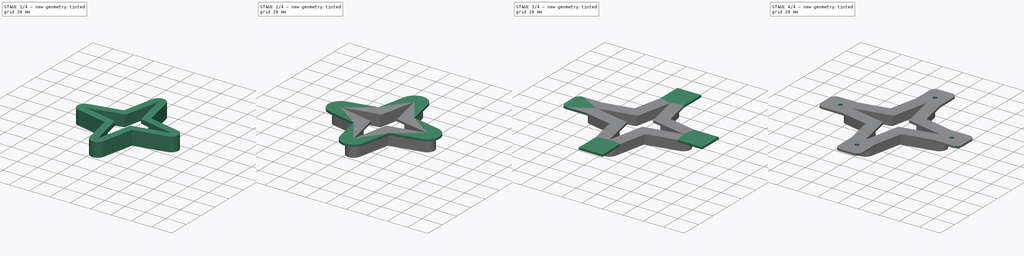
[diagram: build sequence overview — one tinted view per stage of 4, left to right]
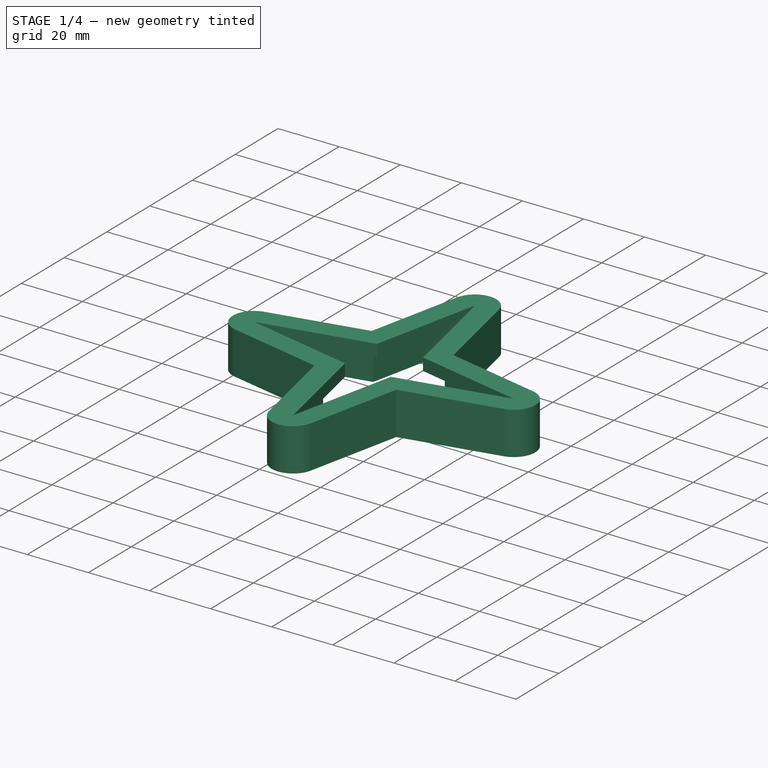
[diagram: stage 1 of 4 — iso view after this stage's code; geometry added in this stage tinted green]
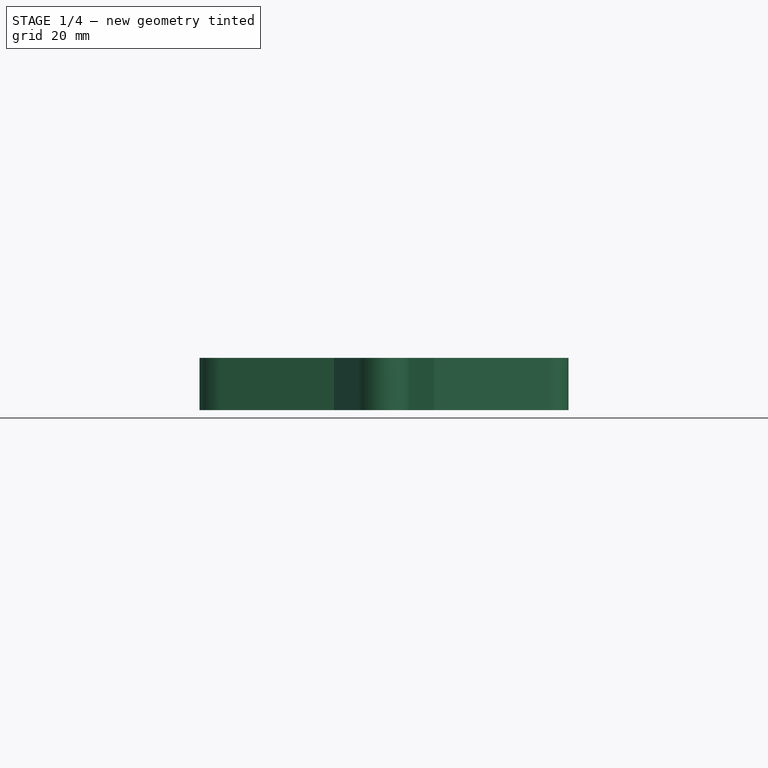
[diagram: stage 1 of 4 — front view after this stage's code; geometry added in this stage tinted green]
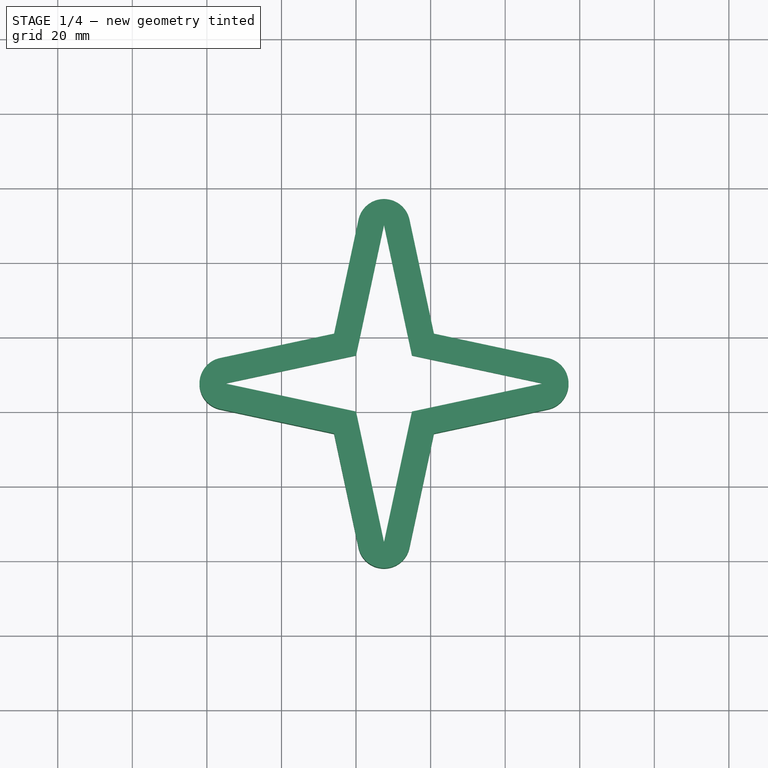
[diagram: stage 1 of 4 — top view after this stage's code; geometry added in this stage tinted green]
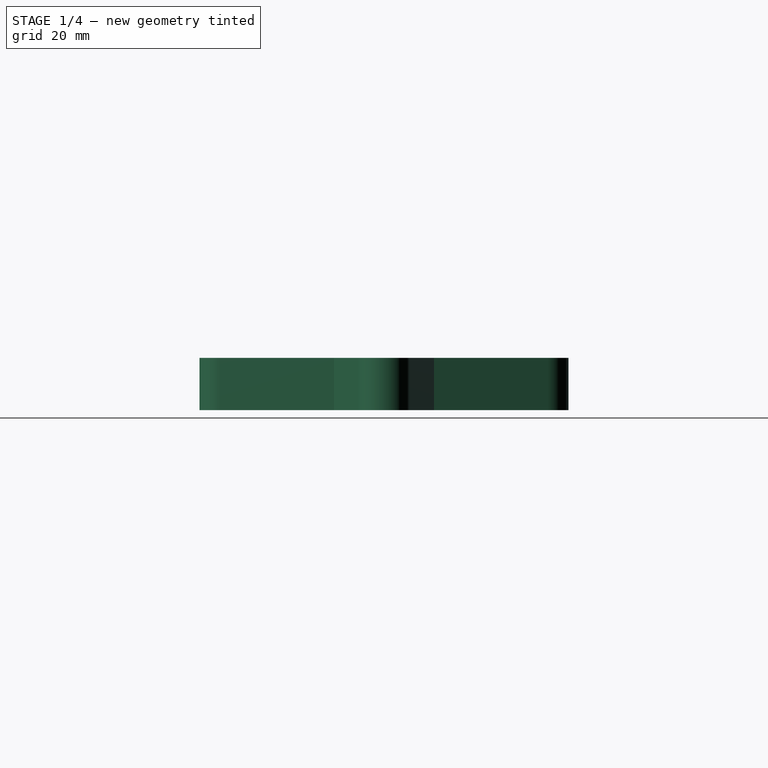
[diagram: stage 1 of 4 — right view after this stage's code; geometry added in this stage tinted green]
FCSTD DOCUMENT  (FreeCAD 1.0R39285 (Git))
Label: star
License: All rights reserved
LicenseURL: https://en.wikipedia.org/wiki/All_rights_reserved
objects: Sketcher::SketchObject×6, PartDesign::Pad×5, PartDesign::Pocket×4, PartDesign::Fillet×3, PartDesign::Body×1
note: 49 computed .brp shape members not serialized (recipe doc carries the construction recipe); baked Part::Feature solids carry a one-line shape summary decoded from their .brp

FEATURE [Sketcher::SketchObject] Sketch
  ArcFitTolerance = 1e-06
  AttachmentSupport = -> [XY_Plane]
  FullyConstrained = false
  MakeInternals = false
  MapMode = 5
  sketch-geometry (20):
    g0: LineSegment StartX=15 StartY=0 StartZ=0 EndX=50 EndY=7.5 EndZ=0
    g1: LineSegment StartX=50 StartY=7.5 StartZ=0 EndX=15 EndY=15 EndZ=0
    g2: LineSegment StartX=0 StartY=0 StartZ=0 EndX=7.5 EndY=-35 EndZ=0
    g3: LineSegment StartX=7.5 StartY=-35 StartZ=0 EndX=15 EndY=0 EndZ=0
    g4: LineSegment StartX=0 StartY=0 StartZ=0 EndX=-35 EndY=7.5 EndZ=0
    g5: LineSegment StartX=-35 StartY=7.5 StartZ=0 EndX=0 EndY=15 EndZ=0
    g6: LineSegment StartX=7.5 StartY=50 StartZ=0 EndX=15 EndY=15 EndZ=0
    g7: LineSegment StartX=0 StartY=15 StartZ=0 EndX=7.5 EndY=50 EndZ=0
    g8: LineSegment StartX=-4.21112 StartY=19.2111 StartZ=0 EndX=2.61099 EndY=51.0476 EndZ=0
    g9: ArcOfCircle CenterX=7.5 CenterY=50 CenterZ=0 NormalX=0 NormalY=0 NormalZ=1 AngleXU=-1.3597 Radius=5 StartAngle=1.5708 EndAngle=4.2902
    g10: LineSegment StartX=12.389 StartY=51.0476 StartZ=0 EndX=19.2111 EndY=19.2111 EndZ=0
    g11: LineSegment StartX=51.0476 StartY=12.389 StartZ=0 EndX=19.2111 EndY=19.2111 EndZ=0
    g12: ArcOfCircle CenterX=50 CenterY=7.5 CenterZ=0 NormalX=0 NormalY=0 NormalZ=1 AngleXU=-2.9305 Radius=5 StartAngle=1.5708 EndAngle=4.2902
    g13: LineSegment StartX=19.2111 StartY=-4.21112 StartZ=0 EndX=51.0476 EndY=2.61099 EndZ=0
    g14: LineSegment StartX=12.389 StartY=-36.0476 StartZ=0 EndX=19.2111 EndY=-4.21112 EndZ=0
    g15: ArcOfCircle CenterX=7.5 CenterY=-35 CenterZ=0 NormalX=0 NormalY=0 NormalZ=1 AngleXU=1.78189 Radius=5 StartAngle=1.5708 EndAngle=4.2902
    g16: LineSegment StartX=-4.21112 StartY=-4.21112 StartZ=0 EndX=2.61099 EndY=-36.0476 EndZ=0
    g17: LineSegment StartX=-4.21112 StartY=-4.21112 StartZ=0 EndX=-36.0476 EndY=2.61099 EndZ=0
    g18: ArcOfCircle CenterX=-35 CenterY=7.5 CenterZ=0 NormalX=0 NormalY=0 NormalZ=1 AngleXU=0.211093 Radius=5 StartAngle=1.5708 EndAngle=4.2902
    g19: LineSegment StartX=-36.0476 StartY=12.389 StartZ=0 EndX=-4.21112 EndY=19.2111 EndZ=0
  constraints (13):
    c: Distance(g0,g-1) = 15
    c: Tangent(g8,g9) = 1.5708
    c: Coincident(g8,g19)
    c: Tangent(g9,g10) = 1.5708
    c: Coincident(g10,g11)
    c: Tangent(g11,g12) = -1.5708
    c: Tangent(g12,g13) = -1.5708
    c: Coincident(g13,g14)
    c: Tangent(g14,g15) = -1.5708
    c: Tangent(g15,g16) = -1.5708
    c: Coincident(g16,g17)
    c: Tangent(g17,g18) = 1.5708
    c: Tangent(g18,g19) = 1.5708
FEATURE [PartDesign::Pad] Pad
  Direction = (0,0,1)
  Length = 2
  Length2 = 10
  Profile = -> Sketch
  ReferenceAxis = -> Sketch [N_Axis]
  Refine = true
  Suppressed = false
  Type = 0
FEATURE [Sketcher::SketchObject] Sketch001
  ArcFitTolerance = 1e-06
  AttachmentSupport = -> [Pad]
  ExternalGeometry = -> [Pad]
  FullyConstrained = true
  MakeInternals = false
  MapMode = 5
  Placement = pos=(0,0,2) rot=(0,0,1;0rad)
FEATURE [Sketcher::SketchObject] Sketch002
  ArcFitTolerance = 1e-06
  AttachmentSupport = -> [Pad]
  ExternalGeometry = -> [Pad]
  FullyConstrained = false
  MakeInternals = false
  MapMode = 5
  Placement = pos=(0,0,2) rot=(0,0,1;0rad)
  sketch-geometry (20):
    g0: LineSegment StartX=7.5 StartY=50 StartZ=0 EndX=15 EndY=15 EndZ=0
    g1: LineSegment StartX=50 StartY=7.5 StartZ=0 EndX=15 EndY=15 EndZ=0
    g2: LineSegment StartX=15 StartY=0 StartZ=0 EndX=50 EndY=7.5 EndZ=0
    g3: LineSegment StartX=15 StartY=0 StartZ=0 EndX=7.5 EndY=-35 EndZ=0
    g4: LineSegment StartX=7.5 StartY=-35 StartZ=0 EndX=0 EndY=0 EndZ=0
    g5: LineSegment StartX=0 StartY=0 StartZ=0 EndX=-35 EndY=7.5 EndZ=0
    g6: LineSegment StartX=0 StartY=15 StartZ=0 EndX=-35 EndY=7.5 EndZ=0
    g7: LineSegment StartX=0 StartY=15 StartZ=0 EndX=7.5 EndY=50 EndZ=0
    g8: LineSegment StartX=-5.89557 StartY=20.8956 StartZ=0 EndX=0.655383 EndY=51.4667 EndZ=0
    g9: ArcOfCircle CenterX=7.5 CenterY=50 CenterZ=0 NormalX=0 NormalY=0 NormalZ=1 AngleXU=-1.3597 Radius=7 StartAngle=1.5708 EndAngle=4.2902
    g10: LineSegment StartX=14.3446 StartY=51.4667 StartZ=0 EndX=20.8956 EndY=20.8956 EndZ=0
    g11: LineSegment StartX=51.4667 StartY=14.3446 StartZ=0 EndX=20.8956 EndY=20.8956 EndZ=0
    g12: ArcOfCircle CenterX=50 CenterY=7.5 CenterZ=0 NormalX=0 NormalY=0 NormalZ=1 AngleXU=-2.9305 Radius=7 StartAngle=1.5708 EndAngle=4.2902
    g13: LineSegment StartX=20.8956 StartY=-5.89557 StartZ=0 EndX=51.4667 EndY=0.655383 EndZ=0
    g14: LineSegment StartX=20.8956 StartY=-5.89557 StartZ=0 EndX=14.3446 EndY=-36.4667 EndZ=0
    g15: ArcOfCircle CenterX=7.5 CenterY=-35 CenterZ=0 NormalX=0 NormalY=0 NormalZ=1 AngleXU=1.78189 Radius=7 StartAngle=1.5708 EndAngle=4.2902
    g16: LineSegment StartX=0.655383 StartY=-36.4667 StartZ=0 EndX=-5.89557 EndY=-5.89557 EndZ=0
    g17: LineSegment StartX=-5.89557 StartY=-5.89557 StartZ=0 EndX=-36.4667 EndY=0.655383 EndZ=0
    g18: ArcOfCircle CenterX=-35 CenterY=7.5 CenterZ=0 NormalX=0 NormalY=0 NormalZ=1 AngleXU=0.211093 Radius=7 StartAngle=1.5708 EndAngle=4.2902
    g19: LineSegment StartX=-5.89557 StartY=20.8956 StartZ=0 EndX=-36.4667 EndY=14.3446 EndZ=0
  constraints (28):
    c: Coincident(g0,g-10)
    c: Coincident(g0,g-5)
    c: Coincident(g1,g-5)
    c: Coincident(g1,g0)
    c: Coincident(g2,g-6)
    c: Coincident(g2,g1)
    c: Coincident(g3,g2)
    c: Coincident(g3,g-7)
    c: Coincident(g4,g3)
    c: Coincident(g4,g-1)
    c: Coincident(g5,g-1)
    c: Coincident(g5,g-9)
    c: Coincident(g6,g-10)
    c: Coincident(g6,g5)
    c: Coincident(g7,g6)
    c: Coincident(g7,g0)
    c: Tangent(g8,g9) = 1.5708
    c: Coincident(g8,g19)
    c: Tangent(g9,g10) = 1.5708
    c: Coincident(g10,g11)
    c: Tangent(g11,g12) = -1.5708
    c: Tangent(g12,g13) = -1.5708
    c: Coincident(g13,g14)
    c: Tangent(g14,g15) = 1.5708
    c: Tangent(g15,g16) = 1.5708
    c: Coincident(g16,g17)
    c: Tangent(g17,g18) = 1.5708
    c: Tangent(g18,g19) = -1.5708
FEATURE [PartDesign::Pad] Pad001
  BaseFeature = -> Pad
  Direction = (0,0,1)
  Length = 2
  Length2 = 10
  Profile = -> Sketch002
  ReferenceAxis = -> Sketch002 [N_Axis]
  Refine = true
  Suppressed = false
  Type = 0
FEATURE [PartDesign::Pad] Pad002
  BaseFeature = -> Pad001
  Direction = (0,0,-1)
  Length = 12
  Length2 = 10
  Profile = -> Pad001 [Face5]
  Refine = true
  Suppressed = false
  Type = 0
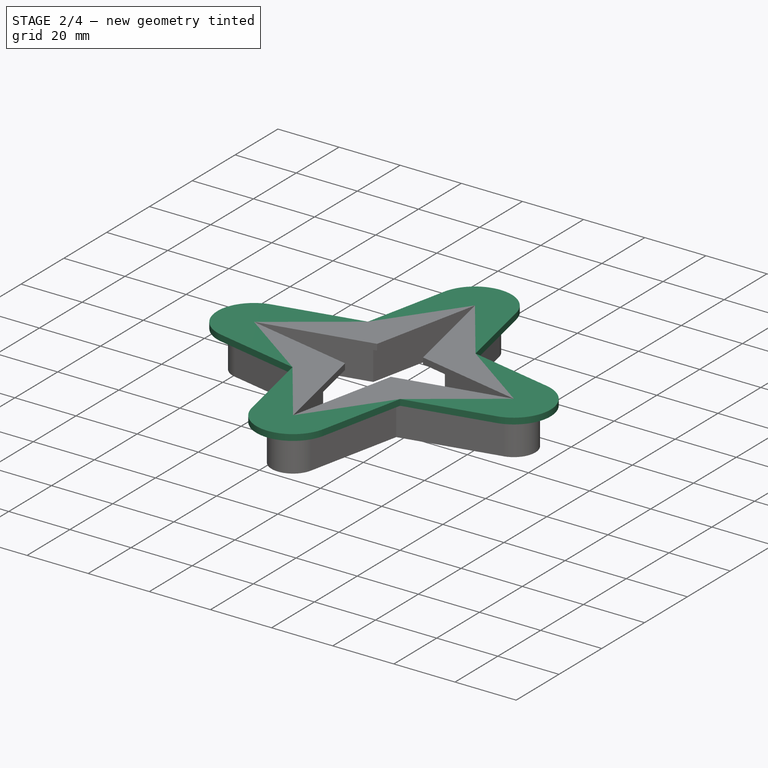
[diagram: stage 2 of 4 — iso view after this stage's code; geometry added in this stage tinted green]
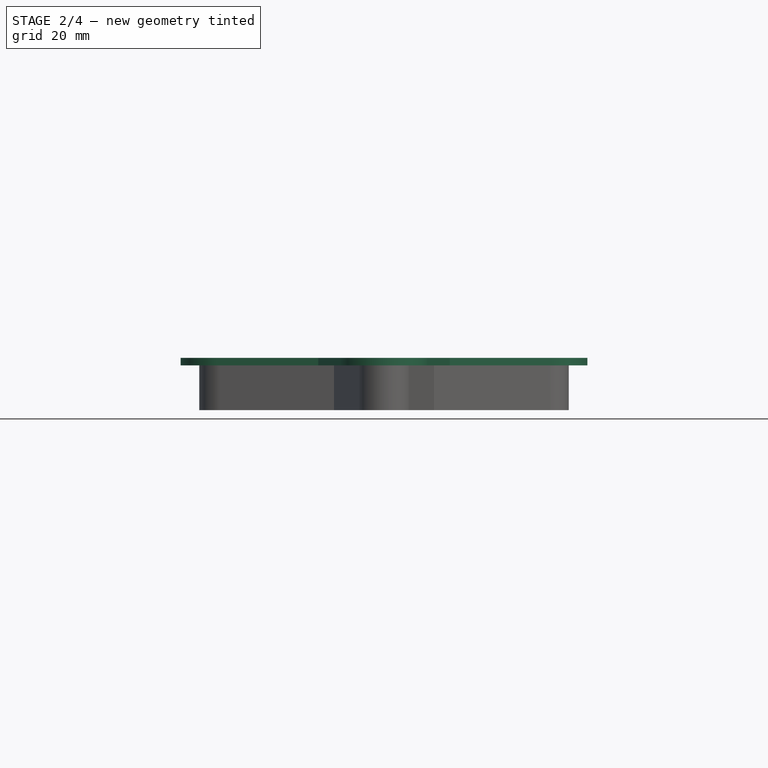
[diagram: stage 2 of 4 — front view after this stage's code; geometry added in this stage tinted green]
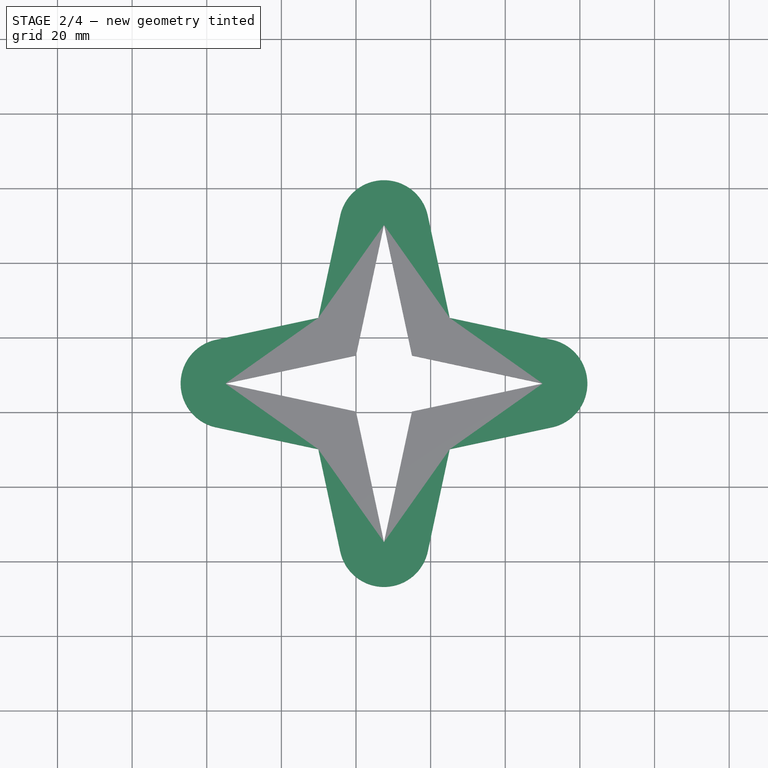
[diagram: stage 2 of 4 — top view after this stage's code; geometry added in this stage tinted green]
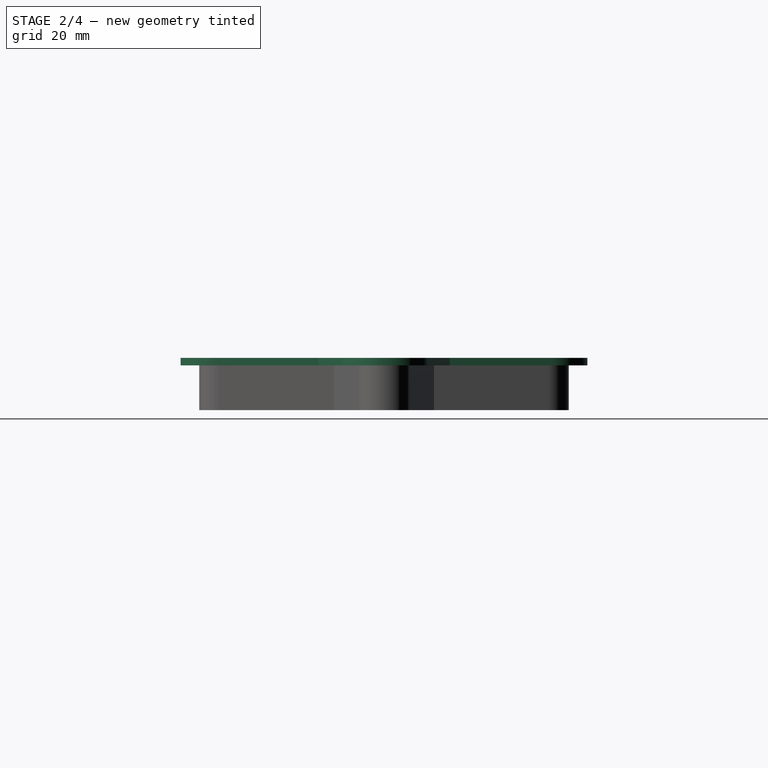
[diagram: stage 2 of 4 — right view after this stage's code; geometry added in this stage tinted green]
FEATURE [PartDesign::Pocket] Pocket
  BaseFeature = -> Pad002
  Direction = (0,0,-1)
  Length = 2
  Length2 = 5
  Profile = -> Pad002 [Face23]
  Refine = true
  Suppressed = false
  Type = 0
FEATURE [Sketcher::SketchObject] Sketch003
  ArcFitTolerance = 1e-06
  AttachmentSupport = -> [Pocket]
  ExternalGeometry = -> [Pocket]
  FullyConstrained = false
  MakeInternals = false
  MapMode = 5
  Placement = pos=(0,0,2) rot=(0,0,1;0rad)
  sketch-geometry (20):
    g0: LineSegment StartX=7.5 StartY=50 StartZ=0 EndX=15 EndY=15 EndZ=0
    g1: LineSegment StartX=15 StartY=15 StartZ=0 EndX=50 EndY=7.5 EndZ=0
    g2: LineSegment StartX=50 StartY=7.5 StartZ=0 EndX=15 EndY=0 EndZ=0
    g3: LineSegment StartX=15 StartY=0 StartZ=0 EndX=7.5 EndY=-35 EndZ=0
    g4: LineSegment StartX=7.5 StartY=-35 StartZ=0 EndX=0 EndY=0 EndZ=0
    g5: LineSegment StartX=0 StartY=0 StartZ=0 EndX=-35 EndY=7.5 EndZ=0
    g6: LineSegment StartX=-35 StartY=7.5 StartZ=0 EndX=0 EndY=15 EndZ=0
    g7: LineSegment StartX=0 StartY=15 StartZ=0 EndX=7.5 EndY=50 EndZ=0
    g8: LineSegment StartX=-10.1067 StartY=25.1067 StartZ=0 EndX=-4.23363 EndY=52.5143 EndZ=0
    g9: ArcOfCircle CenterX=7.5 CenterY=50 CenterZ=0 NormalX=0 NormalY=0 NormalZ=1 AngleXU=-1.3597 Radius=12 StartAngle=1.5708 EndAngle=4.2902
    g10: LineSegment StartX=19.2336 StartY=52.5143 StartZ=0 EndX=25.1067 EndY=25.1067 EndZ=0
    g11: LineSegment StartX=25.1067 StartY=25.1067 StartZ=0 EndX=52.5143 EndY=19.2336 EndZ=0
    g12: ArcOfCircle CenterX=50 CenterY=7.5 CenterZ=0 NormalX=0 NormalY=0 NormalZ=1 AngleXU=-2.9305 Radius=12 StartAngle=1.5708 EndAngle=4.2902
    g13: LineSegment StartX=52.5143 StartY=-4.23363 StartZ=0 EndX=25.1067 EndY=-10.1067 EndZ=0
    g14: LineSegment StartX=25.1067 StartY=-10.1067 StartZ=0 EndX=19.2336 EndY=-37.5143 EndZ=0
    g15: ArcOfCircle CenterX=7.5 CenterY=-35 CenterZ=0 NormalX=0 NormalY=0 NormalZ=1 AngleXU=1.78189 Radius=12 StartAngle=1.5708 EndAngle=4.2902
    g16: LineSegment StartX=-4.23363 StartY=-37.5143 StartZ=0 EndX=-10.1067 EndY=-10.1067 EndZ=0
    g17: LineSegment StartX=-10.1067 StartY=-10.1067 StartZ=0 EndX=-37.5143 EndY=-4.23363 EndZ=0
    g18: ArcOfCircle CenterX=-35 CenterY=7.5 CenterZ=0 NormalX=0 NormalY=0 NormalZ=1 AngleXU=0.211093 Radius=12 StartAngle=1.5708 EndAngle=4.2902
    g19: LineSegment StartX=-37.5143 StartY=19.2336 StartZ=0 EndX=-10.1067 EndY=25.1067 EndZ=0
  constraints (28):
    c: Coincident(g-10,g0)
    c: Coincident(g0,g-4)
    c: Coincident(g0,g1)
    c: Coincident(g1,g-5)
    c: Coincident(g1,g2)
    c: Coincident(g2,g-6)
    c: Coincident(g2,g3)
    c: Coincident(g3,g-7)
    c: Coincident(g3,g4)
    c: Coincident(g4,g-1)
    c: Coincident(g4,g5)
    c: Coincident(g5,g-9)
    c: Coincident(g5,g6)
    c: Coincident(g6,g-10)
    c: Coincident(g6,g7)
    c: Coincident(g7,g0)
    c: Tangent(g8,g9) = 1.5708
    c: Coincident(g8,g19)
    c: Tangent(g9,g10) = 1.5708
    c: Coincident(g10,g11)
    c: Tangent(g11,g12) = 1.5708
    c: Tangent(g12,g13) = 1.5708
    c: Coincident(g13,g14)
    c: Tangent(g14,g15) = 1.5708
    c: Tangent(g15,g16) = 1.5708
    c: Coincident(g16,g17)
    c: Tangent(g17,g18) = 1.5708
    c: Tangent(g18,g19) = 1.5708
FEATURE [PartDesign::Pad] Pad003
  BaseFeature = -> Pocket
  Direction = (0,0,1)
  Length = 2
  Length2 = 10
  Profile = -> Sketch003
  ReferenceAxis = -> Sketch003 [N_Axis]
  Refine = true
  Suppressed = false
  Type = 0
FEATURE [PartDesign::Pocket] Pocket001
  BaseFeature = -> Pad003
  Direction = (0,0,1)
  Length = 2
  Length2 = 5
  Profile = -> Pad003 [Face1]
  Refine = true
  Suppressed = false
  Type = 0
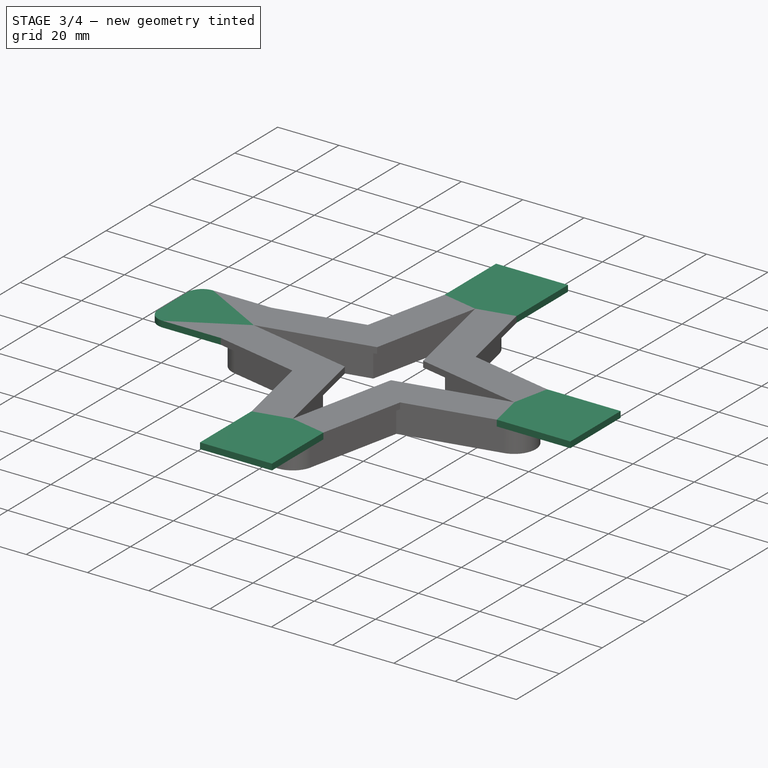
[diagram: stage 3 of 4 — iso view after this stage's code; geometry added in this stage tinted green]
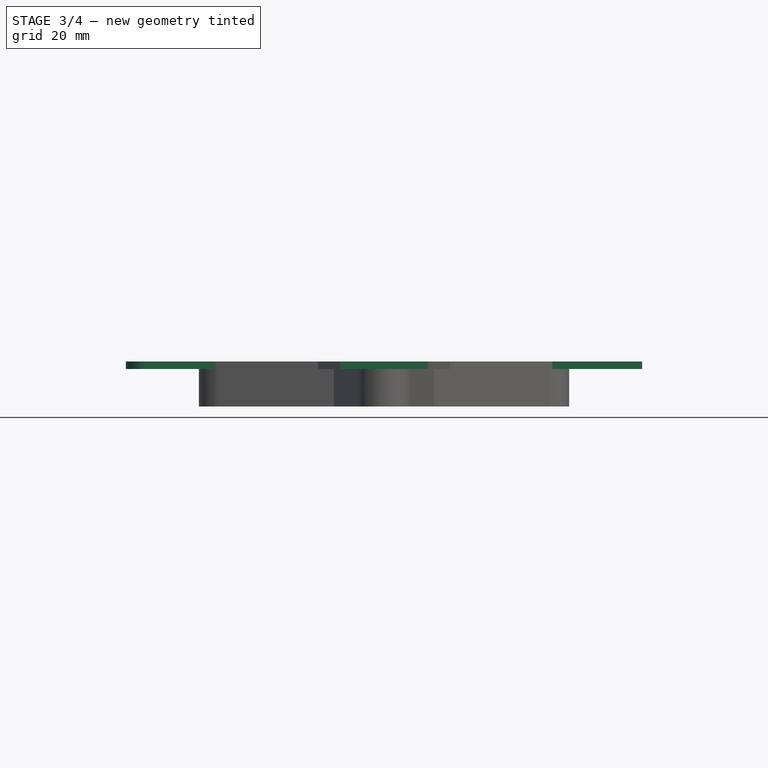
[diagram: stage 3 of 4 — front view after this stage's code; geometry added in this stage tinted green]
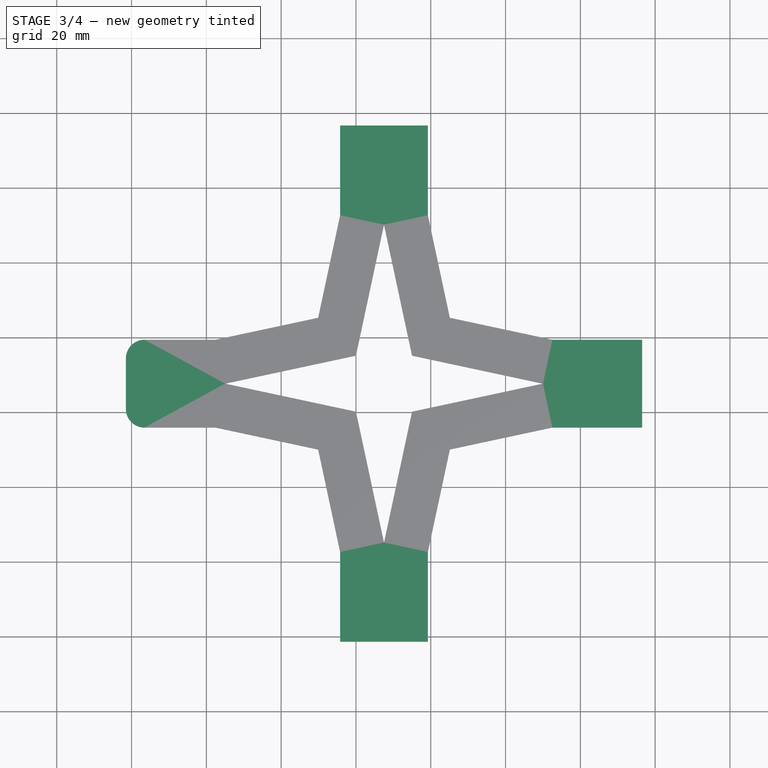
[diagram: stage 3 of 4 — top view after this stage's code; geometry added in this stage tinted green]
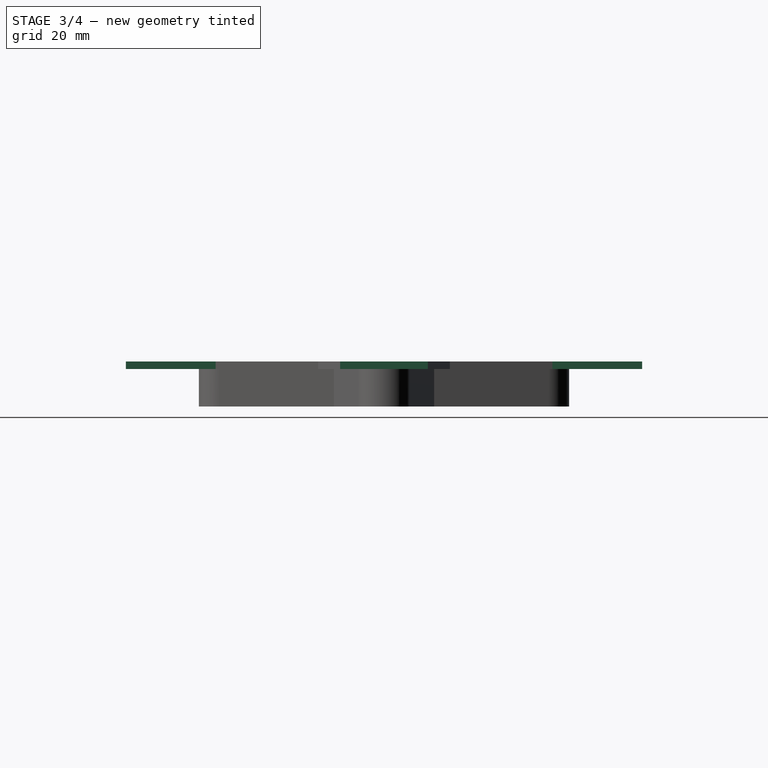
[diagram: stage 3 of 4 — right view after this stage's code; geometry added in this stage tinted green]
FEATURE [PartDesign::Pocket] Pocket002
  BaseFeature = -> Pocket001
  Direction = (0,0,1)
  Length = 2
  Length2 = 5
  Profile = -> Pocket001 [Face1]
  Refine = true
  Suppressed = false
  Type = 0
FEATURE [Sketcher::SketchObject] Sketch004
  ArcFitTolerance = 1e-06
  AttachmentSupport = -> [Pocket002]
  ExternalGeometry = -> [Pocket002]
  FullyConstrained = true
  MakeInternals = false
  MapMode = 5
  Placement = pos=(0,0,2) rot=(1,0,0;3.14159rad)
  sketch-geometry (16):
    g0: LineSegment StartX=-4.23363 StartY=-52.5143 StartZ=0 EndX=-4.23363 EndY=-76.5143 EndZ=0
    g1: LineSegment StartX=-4.23363 StartY=-76.5143 StartZ=0 EndX=19.2364 EndY=-76.5143 EndZ=0
    g2: LineSegment StartX=19.2364 StartY=-76.5143 StartZ=0 EndX=19.2364 EndY=-52.5143 EndZ=0
    g3: LineSegment StartX=19.2364 StartY=-52.5143 StartZ=0 EndX=-4.23363 EndY=-52.5143 EndZ=0
    g4: LineSegment StartX=52.5143 StartY=4.23363 StartZ=0 EndX=52.5143 EndY=-19.2364 EndZ=0
    g5: LineSegment StartX=52.5143 StartY=-19.2364 StartZ=0 EndX=76.5143 EndY=-19.2364 EndZ=0
    g6: LineSegment StartX=76.5143 StartY=-19.2364 StartZ=0 EndX=76.5143 EndY=4.23363 EndZ=0
    g7: LineSegment StartX=76.5143 StartY=4.23363 StartZ=0 EndX=52.5143 EndY=4.23363 EndZ=0
    g8: LineSegment StartX=-4.23363 StartY=37.5143 StartZ=0 EndX=19.2364 EndY=37.5143 EndZ=0
    g9: LineSegment StartX=19.2364 StartY=37.5143 StartZ=0 EndX=19.2364 EndY=61.5143 EndZ=0
    g10: LineSegment StartX=19.2364 StartY=61.5143 StartZ=0 EndX=-4.23363 EndY=61.5143 EndZ=0
    g11: LineSegment StartX=-4.23363 StartY=61.5143 StartZ=0 EndX=-4.23363 EndY=37.5143 EndZ=0
    g12: LineSegment StartX=-37.5143 StartY=4.23363 StartZ=0 EndX=-61.5143 EndY=4.23363 EndZ=0
    g13: LineSegment StartX=-61.5143 StartY=4.23363 StartZ=0 EndX=-61.5143 EndY=-19.2364 EndZ=0
    g14: LineSegment StartX=-61.5143 StartY=-19.2364 StartZ=0 EndX=-37.5143 EndY=-19.2364 EndZ=0
    g15: LineSegment StartX=-37.5143 StartY=-19.2364 StartZ=0 EndX=-37.5143 EndY=4.23363 EndZ=0
  constraints (44):
    c: Coincident(g0,g1)
    c: Coincident(g1,g2)
    c: Coincident(g2,g3)
    c: Coincident(g3,g0)
    c: Vertical(g0)
    c: Vertical(g2)
    c: Horizontal(g1)
    c: Horizontal(g3)
    c: Distance(g0,g2) = 23.47
    c: Distance(g1,g3) = 24
    c: Coincident(g0,g-14)
    c: Coincident(g4,g5)
    c: Coincident(g5,g6)
    c: Coincident(g6,g7)
    c: Coincident(g7,g4)
    c: Vertical(g4)
    c: Vertical(g6)
    c: Horizontal(g5)
    c: Horizontal(g7)
    c: Distance(g4,g6) = 24
    c: Distance(g5,g7) = 23.47
    c: Coincident(g4,g-13)
    c: Coincident(g8,g9)
    c: Coincident(g9,g10)
    c: Coincident(g10,g11)
    c: Coincident(g11,g8)
    c: Horizontal(g8)
    c: Horizontal(g10)
    c: Vertical(g9)
    c: Vertical(g11)
    c: Distance(g9,g11) = 23.47
    c: Distance(g8,g10) = 24
    c: Coincident(g8,g-11)
    c: Coincident(g12,g13)
    c: Coincident(g13,g14)
    c: Coincident(g14,g15)
    c: Coincident(g15,g12)
    c: Horizontal(g12)
    c: Horizontal(g14)
    c: Vertical(g13)
    c: Vertical(g15)
    c: Distance(g13,g15) = 24
    c: Distance(g12,g14) = 23.47
    c: Coincident(g12,g-12)
FEATURE [PartDesign::Pad] Pad004
  BaseFeature = -> Pocket002
  Direction = (0,0,-1)
  Length = 2
  Length2 = 10
  Profile = -> Sketch004
  ReferenceAxis = -> Sketch004 [N_Axis]
  Refine = true
  Reversed = true
  Suppressed = false
  Type = 0
FEATURE [PartDesign::Fillet] Fillet
  Base = -> Pad004 [Edge11,Edge8]
  BaseFeature = -> Pad004
  Radius = 5
  Refine = true
  SupportTransform = false
  Suppressed = false
  UseAllEdges = false
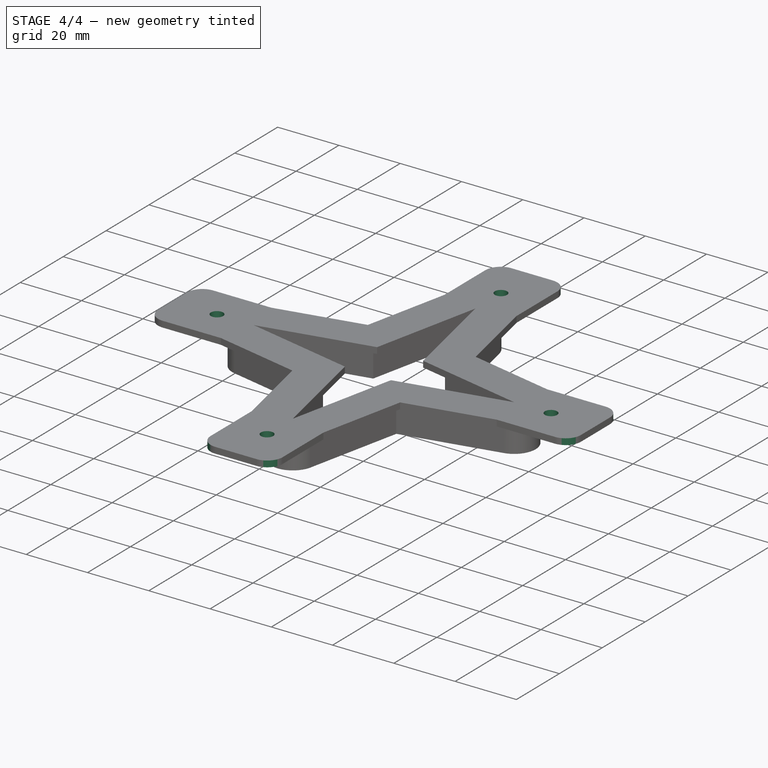
[diagram: stage 4 of 4 — iso view after this stage's code; geometry added in this stage tinted green]
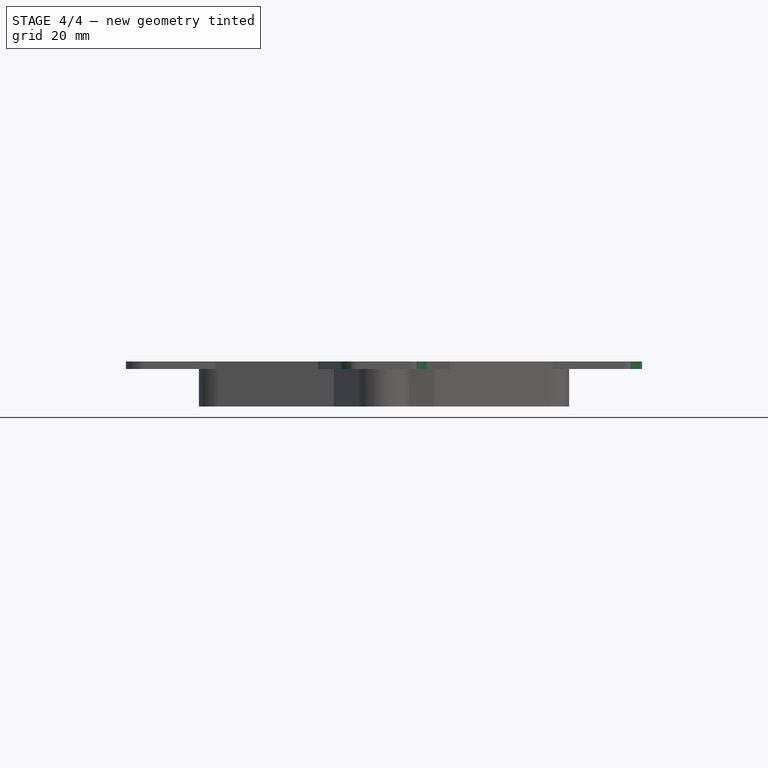
[diagram: stage 4 of 4 — front view after this stage's code; geometry added in this stage tinted green]
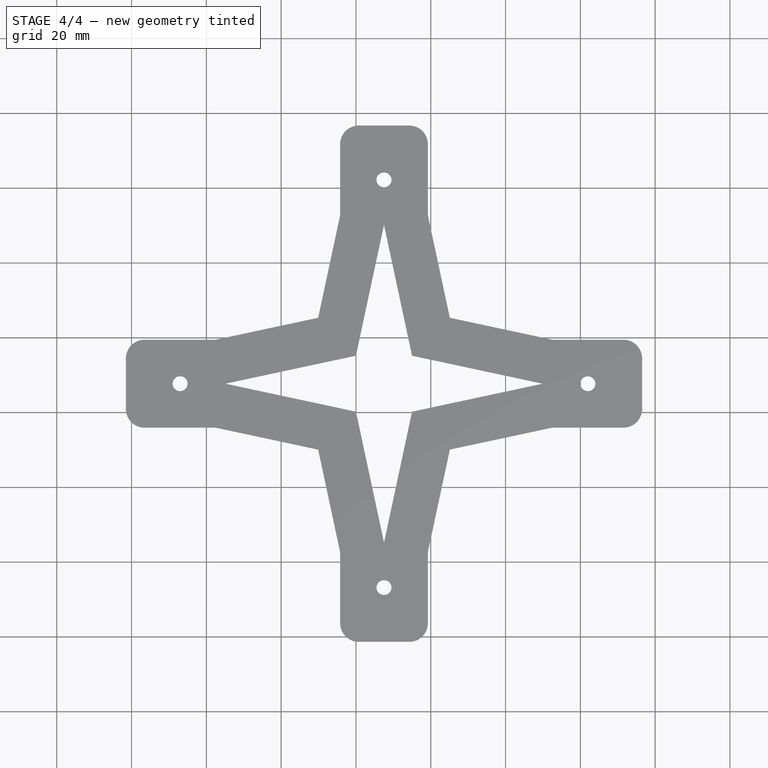
[diagram: stage 4 of 4 — top view after this stage's code; geometry added in this stage tinted green]
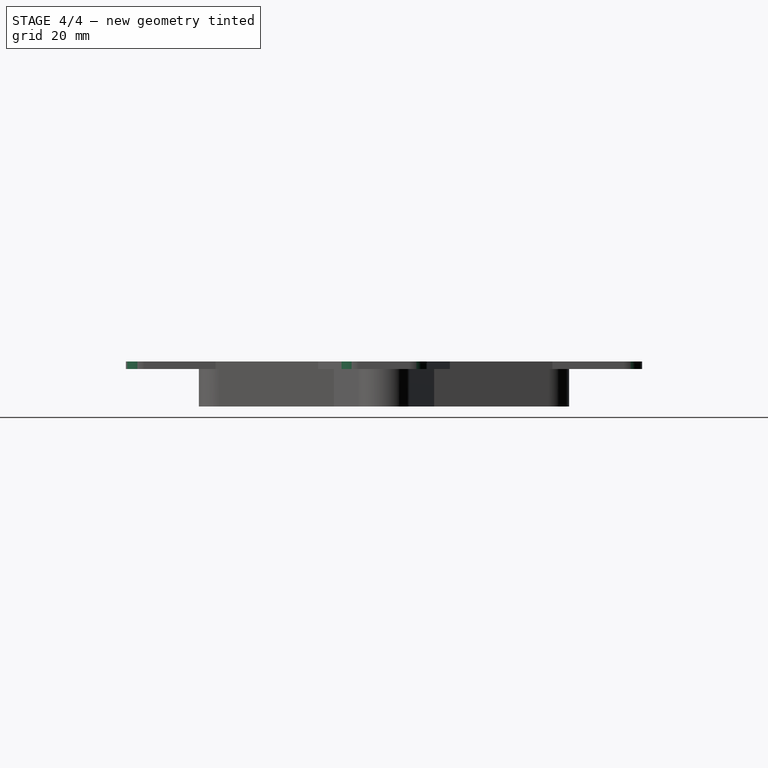
[diagram: stage 4 of 4 — right view after this stage's code; geometry added in this stage tinted green]
FEATURE [PartDesign::Fillet] Fillet001
  Base = -> Fillet [Edge88,Edge90,Edge100,Edge102]
  BaseFeature = -> Fillet
  Radius = 5
  Refine = true
  SupportTransform = false
  Suppressed = false
  UseAllEdges = false
FEATURE [PartDesign::Fillet] Fillet002
  Base = -> Fillet001 [Edge96,Edge100]
  BaseFeature = -> Fillet001
  Radius = 5
  Refine = true
  SupportTransform = false
  Suppressed = false
  UseAllEdges = false
FEATURE [Sketcher::SketchObject] Sketch005
  ArcFitTolerance = 1e-06
  AttachmentSupport = -> [Fillet002]
  ExternalGeometry = -> [Fillet002]
  FullyConstrained = false
  MakeInternals = false
  MapMode = 5
  Placement = pos=(0,0,4) rot=(0,0,1;0rad)
  sketch-geometry (4):
    g0: Circle CenterX=7.50137 CenterY=62.0143 CenterZ=0 NormalX=0 NormalY=0 NormalZ=1 AngleXU=0 Radius=2
    g1: Circle CenterX=7.50137 CenterY=-47.0143 CenterZ=0 NormalX=0 NormalY=0 NormalZ=1 AngleXU=0 Radius=2
    g2: Circle CenterX=62.0143 CenterY=7.50137 CenterZ=0 NormalX=0 NormalY=0 NormalZ=1 AngleXU=0 Radius=2
    g3: Circle CenterX=-47.0143 CenterY=7.50137 CenterZ=0 NormalX=0 NormalY=0 NormalZ=1 AngleXU=0 Radius=2
  constraints (4):
    c: Diameter(g0) = 4
    c: Diameter(g1) = 4
    c: Diameter(g2) = 4
    c: Diameter(g3) = 4
FEATURE [PartDesign::Pocket] Pocket003
  BaseFeature = -> Fillet002
  Direction = (0,0,-1)
  Length = 5
  Length2 = 5
  Profile = -> Sketch005
  ReferenceAxis = -> Sketch005 [N_Axis]
  Refine = true
  Suppressed = false
  Type = 0
FEATURE [PartDesign::Body] Body
  AllowCompound = false
  Group = -> [Sketch,Pad,Sketch001,Sketch002,Pad001,Pad002,Pocket,Sketch003,Pad003,Pocket001,Pocket002,Sketch004,Pad004,Fillet,Fillet001,Fillet002,Sketch005,Pocket003]
  Origin = -> Origin
  Tip = -> Pocket003
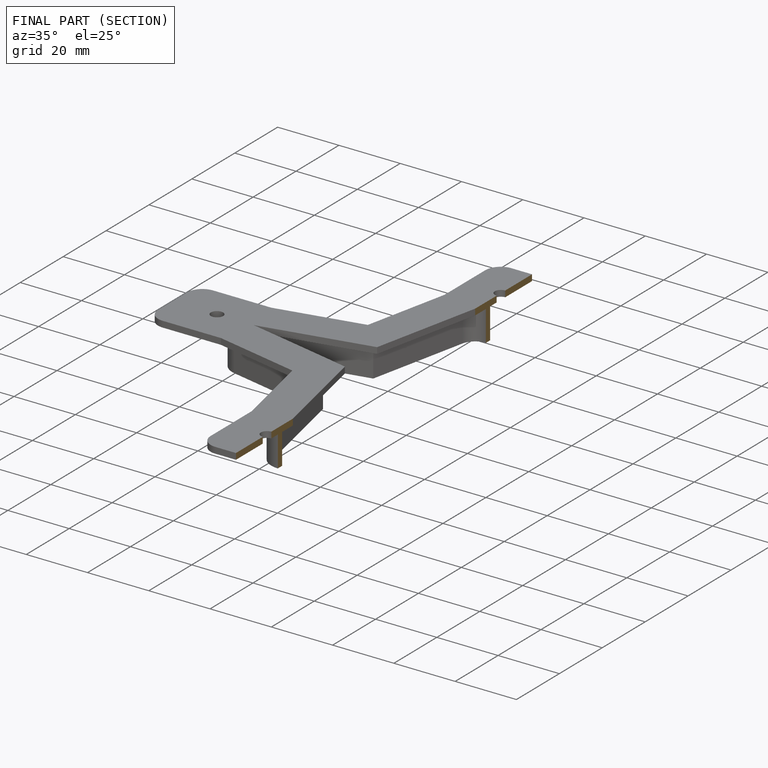
[diagram: finished part — half-section view (interior)]
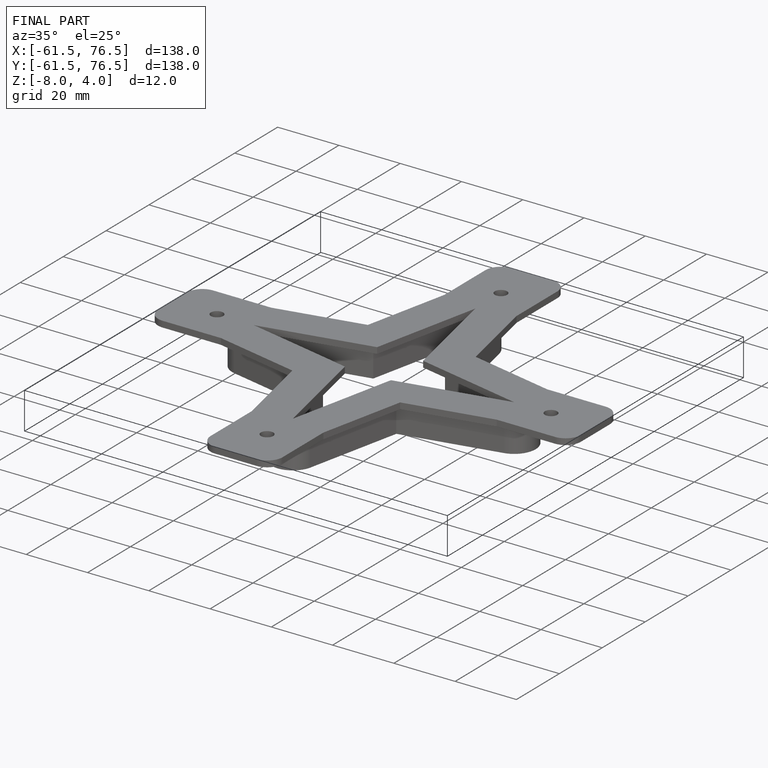
[diagram: finished part — iso view with bounding-box wireframe]
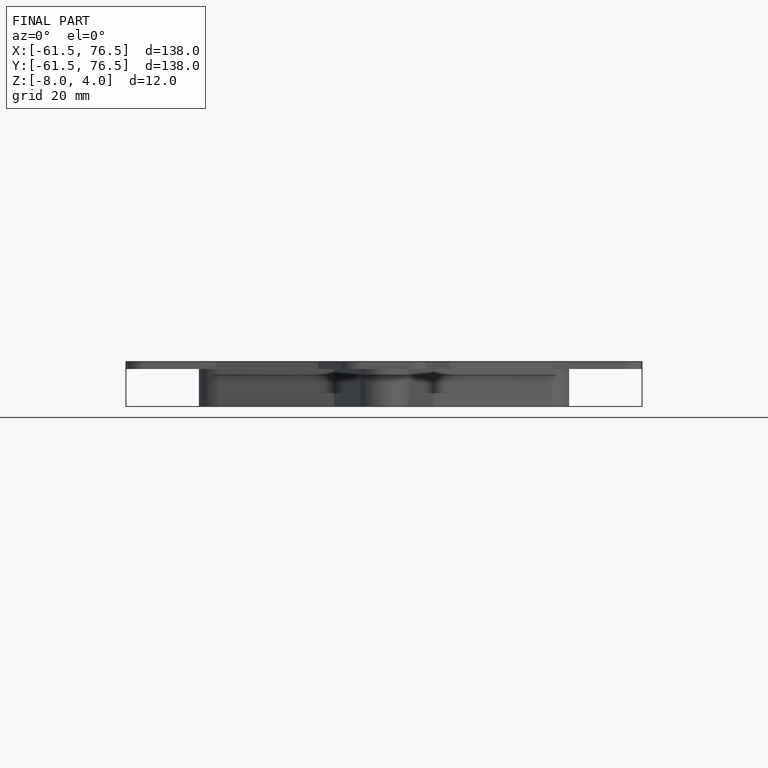
[diagram: finished part — front view with bounding-box wireframe]
